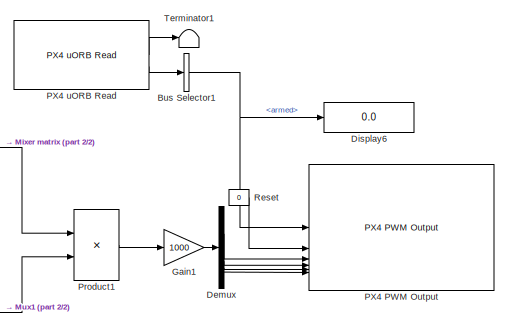
[diagram: root canvas - part 1/2, top right region]
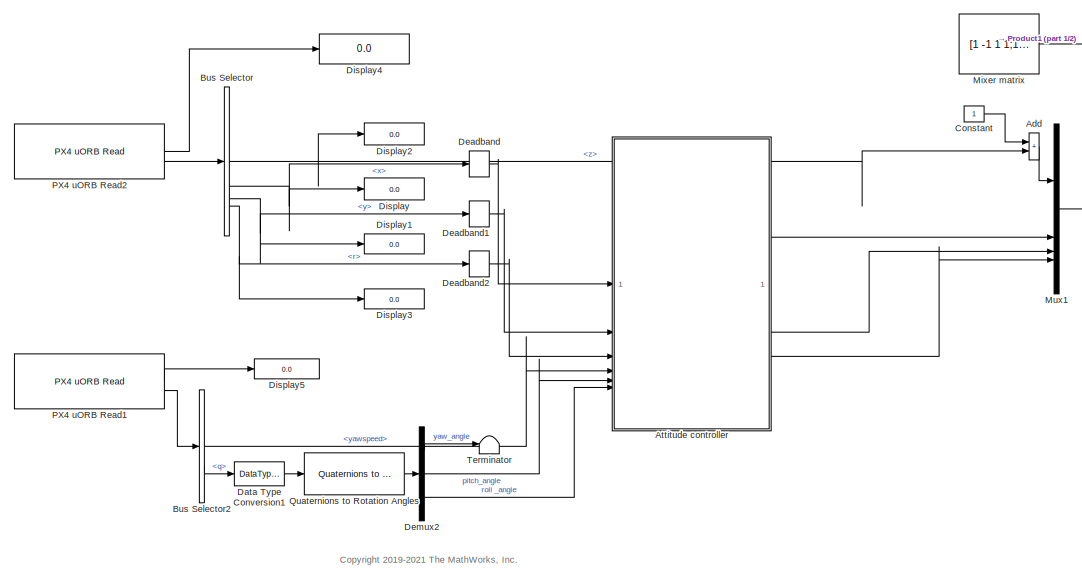
[diagram: root canvas - part 2/2, center side, full height]
MODEL slx_37d7e5f2ab68
KIND model
CONFIG AbsTol = auto
CONFIG EnableMultiTasking = on
CONFIG FixedStep = auto
CONFIG MaxStep = auto
CONFIG MinStep = auto
CONFIG RelTol = 1e-3
CONFIG SampleTimeConstraint = Unconstrained
CONFIG SolverName = FixedStepAuto
CONFIG StartTime = 0.0
CONFIG StopTime = inf
BLOCK [Sum] Add
  IconShape = rectangular
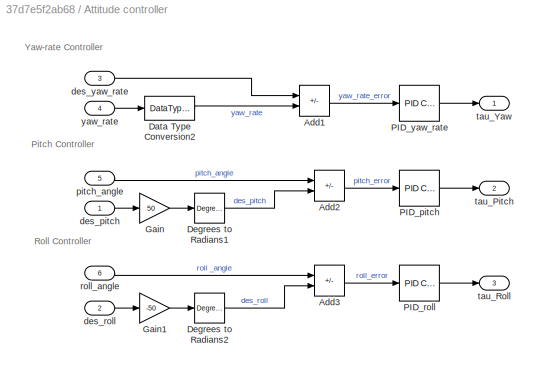
BLOCK [SubSystem] Attitude controller
BLOCK [Sum] Attitude controller/Add1
  IconShape = rectangular
  Inputs = +-
BLOCK [Sum] Attitude controller/Add2
  IconShape = rectangular
  Inputs = +-
BLOCK [Sum] Attitude controller/Add3
  IconShape = rectangular
  Inputs = +-
BLOCK [DataTypeConversion] Attitude controller/Data Type Conversion2
  OutDataTypeStr = double
  RndMeth = Floor
  SaturateOnIntegerOverflow = off
BLOCK [Reference] Attitude controller/Degrees to Radians1  REF=simulink_extras/Transformations/Degrees to
Radians
  SourceBlock = simulink_extras/Transformations/Degrees to\nRadians
  SourceType = DegreesToRadians
BLOCK [Reference] Attitude controller/Degrees to Radians2  REF=simulink_extras/Transformations/Degrees to
Radians
  SourceBlock = simulink_extras/Transformations/Degrees to\nRadians
  SourceType = DegreesToRadians
BLOCK [Gain] Attitude controller/Gain
  Gain = 50
BLOCK [Gain] Attitude controller/Gain1
  Gain = -50
BLOCK [Reference] Attitude controller/PID_pitch  REF=slpidlib/PID Controller
  SourceBlock = slpidlib/PID Controller
  SourceType = PID 1dof
BLOCK [Reference] Attitude controller/PID_roll  REF=slpidlib/PID Controller
  SourceBlock = slpidlib/PID Controller
  SourceType = PID 1dof
BLOCK [Reference] Attitude controller/PID_yaw_rate  REF=slpidlib/PID Controller
  SourceBlock = slpidlib/PID Controller
  SourceType = PID 1dof
BLOCK [Inport] Attitude controller/des_pitch
BLOCK [Inport] Attitude controller/des_roll
  Port = 2
BLOCK [Inport] Attitude controller/des_yaw_rate
  Port = 3
BLOCK [Inport] Attitude controller/pitch_angle
  Port = 5
BLOCK [Inport] Attitude controller/roll_angle
  Port = 6
BLOCK [Outport] Attitude controller/tau_Pitch
  Port = 2
BLOCK [Outport] Attitude controller/tau_Roll
  Port = 3
BLOCK [Outport] Attitude controller/tau_Yaw
BLOCK [Inport] Attitude controller/yaw_rate
  Port = 4
BLOCK [BusSelector] Bus Selector
  OutputSignals = z,x,y,r
BLOCK [BusSelector] Bus Selector1
  OutputSignals = armed
BLOCK [BusSelector] Bus Selector2
  OutputSignals = yawspeed,q
BLOCK [Constant] Constant
BLOCK [DataTypeConversion] Data Type Conversion1
  OutDataTypeStr = double
  RndMeth = Floor
  SaturateOnIntegerOverflow = off
BLOCK [DeadZone] Deadband
  LowerValue = -0.05
  UpperValue = 0.05
BLOCK [DeadZone] Deadband1
  LowerValue = -0.05
  UpperValue = 0.05
BLOCK [DeadZone] Deadband2
  LowerValue = -0.05
  UpperValue = 0.05
BLOCK [Demux] Demux
BLOCK [Demux] Demux2
  Outputs = 3
BLOCK [Display] Display
  Decimation = 1
BLOCK [Display] Display1
  Decimation = 1
BLOCK [Display] Display2
  Decimation = 1
BLOCK [Display] Display3
  Decimation = 1
BLOCK [Display] Display4
  Decimation = 1
BLOCK [Display] Display5
  Decimation = 1
BLOCK [Display] Display6
  Decimation = 1
BLOCK [Gain] Gain1
  Gain = 1000
  OutDataTypeStr = uint16
BLOCK [Constant] Mixer matrix
  NameLocation = top
  OutDataTypeStr = Inherit: Inherit via back propagation
  Value = [1 -1 1 1;1 1 -1 1;1 -1 -1 -1;1 1 1 -1]
BLOCK [Mux] Mux1
  DisplayOption = bar
BLOCK [Reference] PX4 PWM Output  REF=px4lib/PX4 PWM Output
  SourceBlock = px4lib/PX4 PWM Output
  SourceType = PX4 PWM Output
BLOCK [Reference] PX4 uORB Read  REF=px4uORBlib/PX4 uORB Read
  SourceBlock = px4uORBlib/PX4 uORB Read
  SourceType = PX4 uORB Read
BLOCK [Reference] PX4 uORB Read1  REF=px4uORBlib/PX4 uORB Read
  SourceBlock = px4uORBlib/PX4 uORB Read
  SourceType = PX4 uORB Read
BLOCK [Reference] PX4 uORB Read2  REF=px4uORBlib/PX4 uORB Read
  SourceBlock = px4uORBlib/PX4 uORB Read
  SourceType = PX4 uORB Read
BLOCK [Product] Product1
  Multiplication = Matrix(*)
  RndMeth = Zero
BLOCK [Reference] Quaternions to Rotation Angles  REF=sharedtransform/Quaternions to Rotation Angles
  AttributesFormatString = Rotation Order: %<rotationOrder>
  SourceBlock = sharedtransform/Quaternions to Rotation Angles
  SourceType = Quat2Ang
BLOCK [Constant] Reset
  OutDataTypeStr = boolean
  Value = 0
BLOCK [Terminator] Terminator
BLOCK [Terminator] Terminator1
ANNOTATION (root): <copyright redacted>
ANNOTATION Attitude controller: Pitch Controller
ANNOTATION Attitude controller: Roll Controller
ANNOTATION Attitude controller: Yaw-rate Controller
LINE Add:1 -> Mux1:1
LINE Attitude controller/Add1:1 -> Attitude controller/PID_yaw_rate:1
LINE Attitude controller/Add2:1 -> Attitude controller/PID_pitch:1
LINE Attitude controller/Add3:1 -> Attitude controller/PID_roll:1
LINE Attitude controller/Data Type Conversion2:1 -> Attitude controller/Add1:2
LINE Attitude controller/Degrees to Radians1:1 -> Attitude controller/Add2:2
LINE Attitude controller/Degrees to Radians2:1 -> Attitude controller/Add3:2
LINE Attitude controller/Gain1:1 -> Attitude controller/Degrees to Radians2:1
LINE Attitude controller/Gain:1 -> Attitude controller/Degrees to Radians1:1
LINE Attitude controller/PID_pitch:1 -> Attitude controller/tau_Pitch:1
LINE Attitude controller/PID_roll:1 -> Attitude controller/tau_Roll:1
LINE Attitude controller/PID_yaw_rate:1 -> Attitude controller/tau_Yaw:1
LINE Attitude controller/des_pitch:1 -> Attitude controller/Gain:1
LINE Attitude controller/des_roll:1 -> Attitude controller/Gain1:1
LINE Attitude controller/des_yaw_rate:1 -> Attitude controller/Add1:1
LINE Attitude controller/pitch_angle:1 -> Attitude controller/Add2:1
LINE Attitude controller/roll_angle:1 -> Attitude controller/Add3:1
LINE Attitude controller/yaw_rate:1 -> Attitude controller/Data Type Conversion2:1
LINE Attitude controller:1 -> Mux1:2
LINE Attitude controller:2 -> Mux1:3
LINE Attitude controller:3 -> Mux1:4
NET Bus Selector1:1 -> Display6:1, PX4 PWM Output:1
LINE Bus Selector2:1 -> Attitude controller:4
LINE Bus Selector2:2 -> Data Type Conversion1:1
NET Bus Selector:1 -> Add:2, Display2:1
NET Bus Selector:2 -> Deadband:1, Display:1
NET Bus Selector:3 -> Deadband1:1, Display1:1
NET Bus Selector:4 -> Deadband2:1, Display3:1
LINE Constant:1 -> Add:1
LINE Data Type Conversion1:1 -> Quaternions to Rotation Angles:1
LINE Deadband1:1 -> Attitude controller:2
LINE Deadband2:1 -> Attitude controller:3
LINE Deadband:1 -> Attitude controller:1
LINE Demux2:1 -> Terminator:1
LINE Demux2:2 -> Attitude controller:5
LINE Demux2:3 -> Attitude controller:6
LINE Demux:1 -> PX4 PWM Output:3
LINE Demux:2 -> PX4 PWM Output:4
LINE Demux:3 -> PX4 PWM Output:5
LINE Demux:4 -> PX4 PWM Output:6
LINE Gain1:1 -> Demux:1
LINE Mixer matrix:1 -> Product1:1
LINE Mux1:1 -> Product1:2
LINE PX4 uORB Read1:1 -> Display5:1
LINE PX4 uORB Read1:2 -> Bus Selector2:1
LINE PX4 uORB Read2:1 -> Display4:1
LINE PX4 uORB Read2:2 -> Bus Selector:1
LINE PX4 uORB Read:1 -> Terminator1:1
LINE PX4 uORB Read:2 -> Bus Selector1:1
LINE Product1:1 -> Gain1:1
LINE Quaternions to Rotation Angles:1 -> Demux2:1
LINE Reset:1 -> PX4 PWM Output:2
note: NET lines group one-source signal fan-out (src -> all destinations, sorted); 1:1 wires keep LINE
